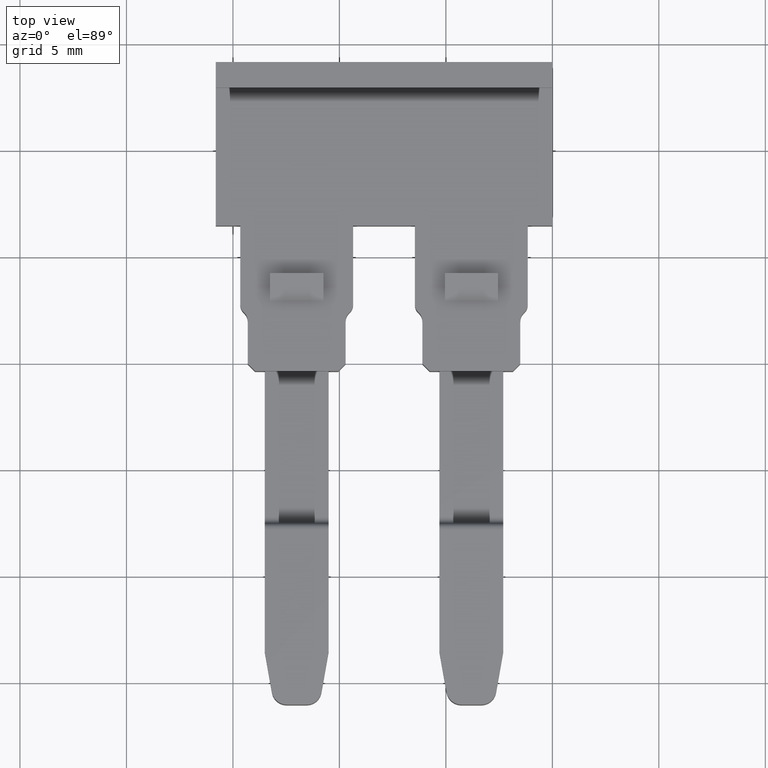
[diagram: clean part render]
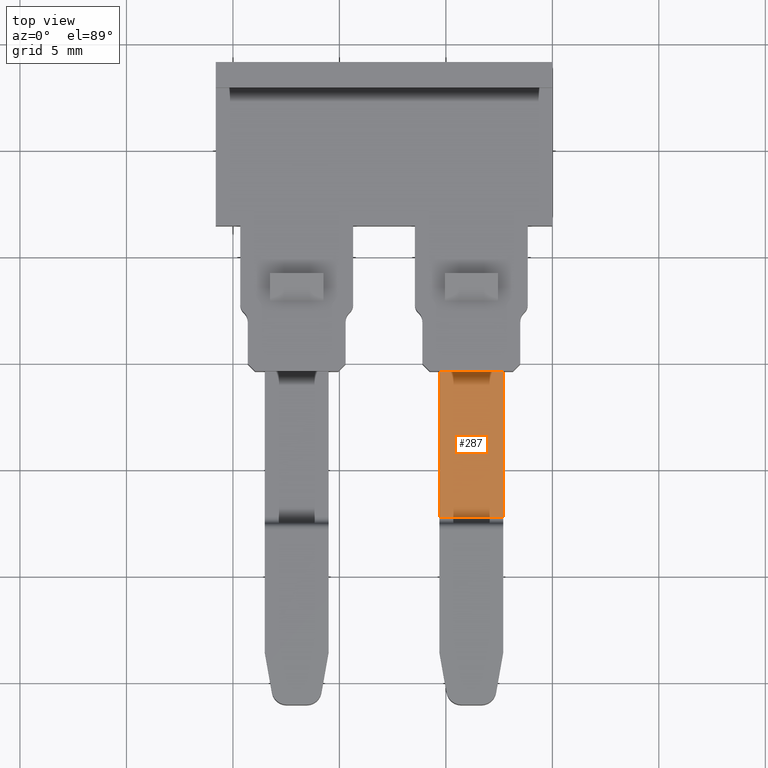
[diagram: same view with one face highlighted and labeled with its STEP entity id]
A machine part, top view. The second image highlights one B-rep face of the part: STEP entity #287.
In plain terms, the highlighted planar face has unit normal (0, 0, -1).
Its self-contained STEP definition (entity closure, byte-faithful):
#122 = EDGE_CURVE ( 'NONE', #2664, #2652, #795, .T. ) ;
#125 = EDGE_CURVE ( 'NONE', #2635, #2606, #854, .T. ) ;
#176 = EDGE_CURVE ( 'NONE', #2664, #2606, #974, .T. ) ;
#189 = EDGE_CURVE ( 'NONE', #2652, #2635, #1011, .T. ) ;
#287 = ADVANCED_FACE ( 'NONE', ( #1372 ), #1359, .F. ) ;
#503 = CARTESIAN_POINT ( 'NONE',  ( 1152.694494728928900, 659.6092820011524500, 2.199999999999997100 ) ) ;
#544 = CARTESIAN_POINT ( 'NONE',  ( 1152.694494728928900, 652.7699856250221700, 2.200000000000050400 ) ) ;
#575 = CARTESIAN_POINT ( 'NONE',  ( 1149.694493449734000, 659.6092820011524500, 2.199999999999889600 ) ) ;
#596 = CARTESIAN_POINT ( 'NONE',  ( 1149.694493738323700, 652.7700208248105600, 2.199999999999889600 ) ) ;
#772 = DIRECTION ( 'NONE',  ( -1.259368144656452000E-037, 1.000000000000000000, 2.347622273454535600E-024 ) ) ;
#795 = LINE ( 'NONE', #809, #1584 ) ;
#809 = CARTESIAN_POINT ( 'NONE',  ( 1149.694493738323700, 641.3475629657206100, 2.199999999999889600 ) ) ;
#822 = CARTESIAN_POINT ( 'NONE',  ( 1152.694494728928900, 641.3475629657206100, 2.200000000000050400 ) ) ;
#826 = DIRECTION ( 'NONE',  ( 1.259368144656452000E-037, -1.000000000000000000, -2.347622273454535600E-024 ) ) ;
#854 = LINE ( 'NONE', #822, #1620 ) ;
#963 = DIRECTION ( 'NONE',  ( 0.9999999999311652800, -1.173325886225305500E-005, 5.364441114782054900E-014 ) ) ;
#967 = CARTESIAN_POINT ( 'NONE',  ( 1152.694503362591800, 652.7699856249209900, 2.200000000000050400 ) ) ;
#974 = LINE ( 'NONE', #967, #1669 ) ;
#1011 = LINE ( 'NONE', #1033, #1638 ) ;
#1019 = DIRECTION ( 'NONE',  ( 1.000000000000000000, 1.259332280444392000E-037, 2.956436511251547900E-061 ) ) ;
#1033 = CARTESIAN_POINT ( 'NONE',  ( 1158.234848447492800, 659.6092820011524500, 2.199999999999889600 ) ) ;
#1359 = PLANE ( 'NONE',  #1755 ) ;
#1364 = CARTESIAN_POINT ( 'NONE',  ( 1153.694489309877800, 641.3475629657206100, 2.200000000000104100 ) ) ;
#1372 = FACE_OUTER_BOUND ( 'NONE', #2514, .T. ) ;
#1376 = DIRECTION ( 'NONE',  ( 5.364441115151317600E-014, 2.347622273454535600E-024, -1.000000000000000000 ) ) ;
#1379 = DIRECTION ( 'NONE',  ( -1.000000000000000000, 0.0000000000000000000, -5.364441115151317600E-014 ) ) ;
#1584 = VECTOR ( 'NONE', #772, 1000.000000000000000 ) ;
#1620 = VECTOR ( 'NONE', #826, 1000.000000000000000 ) ;
#1638 = VECTOR ( 'NONE', #1019, 1000.000000000000000 ) ;
#1669 = VECTOR ( 'NONE', #963, 1000.000000000000100 ) ;
#1755 = AXIS2_PLACEMENT_3D ( 'NONE', #1364, #1376, #1379 ) ;
#2192 = ORIENTED_EDGE ( 'NONE', *, *, #176, .T. ) ;
#2210 = ORIENTED_EDGE ( 'NONE', *, *, #189, .F. ) ;
#2235 = ORIENTED_EDGE ( 'NONE', *, *, #125, .F. ) ;
#2240 = ORIENTED_EDGE ( 'NONE', *, *, #122, .F. ) ;
#2514 = EDGE_LOOP ( 'NONE', ( #2240, #2192, #2235, #2210 ) ) ;
#2606 = VERTEX_POINT ( 'NONE', #544 ) ;
#2635 = VERTEX_POINT ( 'NONE', #503 ) ;
#2652 = VERTEX_POINT ( 'NONE', #575 ) ;
#2664 = VERTEX_POINT ( 'NONE', #596 ) ;